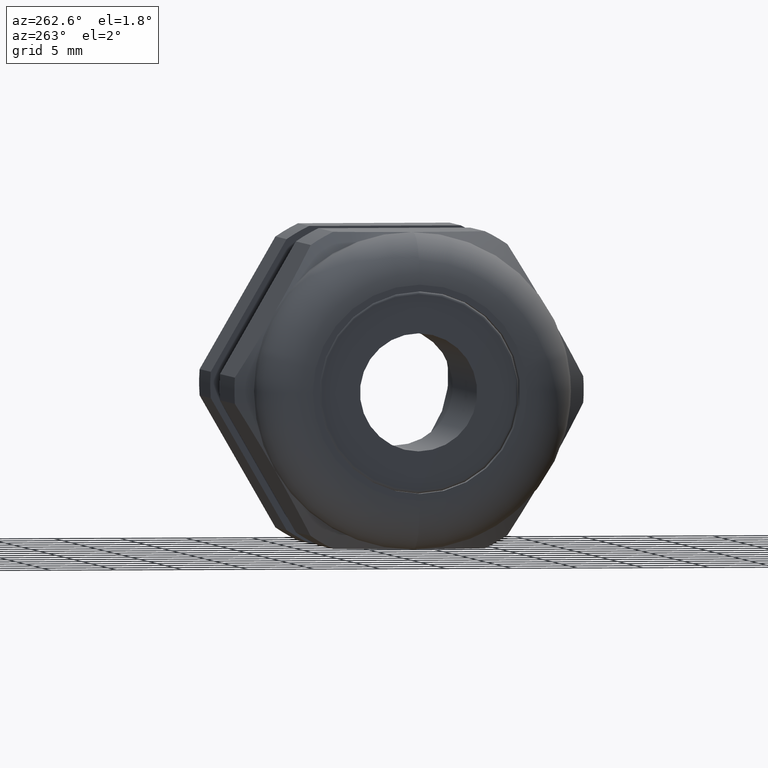
[diagram: clean part render]
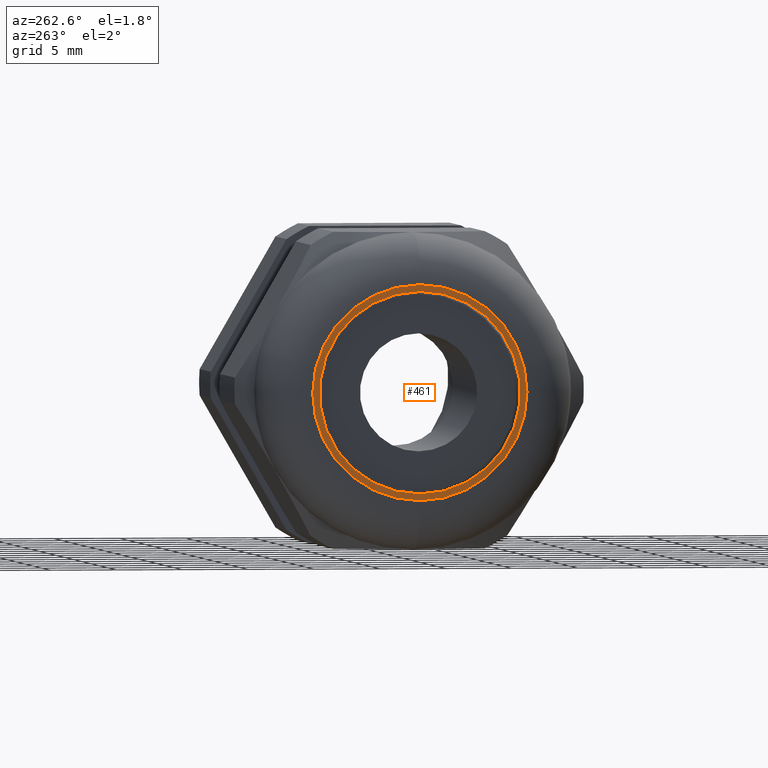
[diagram: same view with one face highlighted and labeled with its STEP entity id]
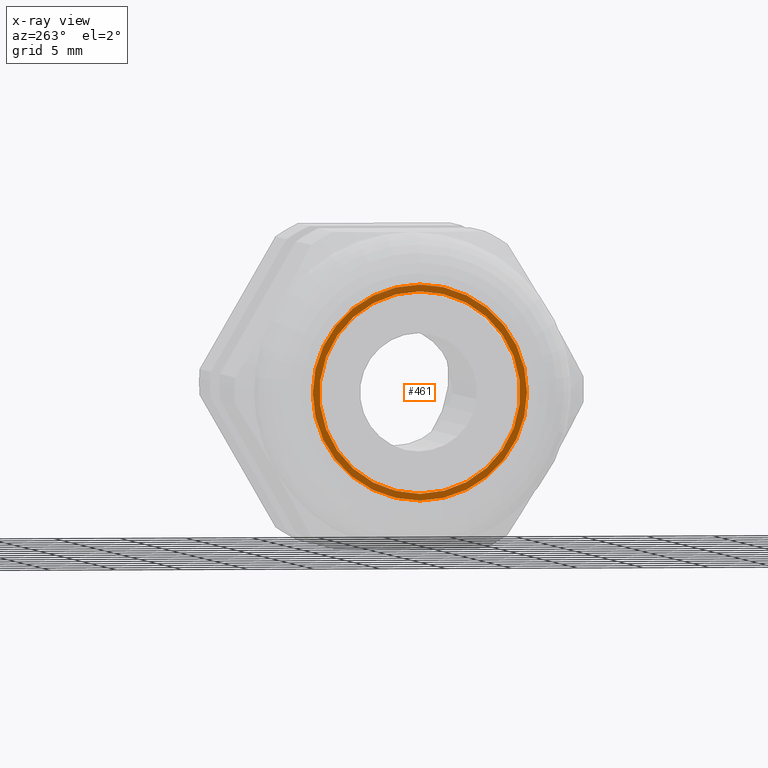
[diagram: x-ray of the same camera — body ghosted, the highlighted face saturated]
A machine part, auxiliary view. The second image highlights one B-rep face of the part: STEP entity #461.
The next image is the same camera in x-ray: the body ghosted, the highlighted face saturated — about 0% of this face is hidden behind the body in this view.
In plain terms, the highlighted planar face has unit normal (-1, 0, 0).
Its self-contained STEP definition (entity closure, byte-faithful):
#409 = EDGE_LOOP ( 'NONE', ( #462, #463 ) ) ;
#461 = ADVANCED_FACE ( 'NONE', ( #1886, #1885 ), #1948, .T. ) ;
#462 = ORIENTED_EDGE ( 'NONE', *, *, #2996, .T. ) ;
#463 = ORIENTED_EDGE ( 'NONE', *, *, #464, .T. ) ;
#464 = EDGE_CURVE ( 'NONE', #3004, #2998, #1943, .T. ) ;
#465 = EDGE_LOOP ( 'NONE', ( #466, #467 ) ) ;
#466 = ORIENTED_EDGE ( 'NONE', *, *, #483, .T. ) ;
#467 = ORIENTED_EDGE ( 'NONE', *, *, #3172, .T. ) ;
#483 = EDGE_CURVE ( 'NONE', #3169, #3171, #1981, .T. ) ;
#1885 = FACE_BOUND ( 'NONE', #465, .T. ) ;
#1886 = FACE_OUTER_BOUND ( 'NONE', #409, .T. ) ;
#1920 = CARTESIAN_POINT ( 'NONE',  ( -1.369999999999999900, 0.0000000000000000000, 0.0000000000000000000 ) ) ;
#1939 = DIRECTION ( 'NONE',  ( 0.0000000000000000000, 0.0000000000000000000, 1.000000000000000000 ) ) ;
#1940 = DIRECTION ( 'NONE',  ( -1.000000000000000000, 0.0000000000000000000, 0.0000000000000000000 ) ) ;
#1941 = CARTESIAN_POINT ( 'NONE',  ( -1.369999999999999900, 0.0000000000000000000, 0.0000000000000000000 ) ) ;
#1942 = AXIS2_PLACEMENT_3D ( 'NONE', #1941, #1940, #1939 ) ;
#1943 = CIRCLE ( 'NONE', #1942, 0.3199999999999999500 ) ;
#1944 = DIRECTION ( 'NONE',  ( 0.0000000000000000000, 0.0000000000000000000, 1.000000000000000000 ) ) ;
#1945 = DIRECTION ( 'NONE',  ( -1.000000000000000000, 0.0000000000000000000, 0.0000000000000000000 ) ) ;
#1946 = CARTESIAN_POINT ( 'NONE',  ( -1.369999999999999900, 0.4699999999999999700, 0.0000000000000000000 ) ) ;
#1947 = AXIS2_PLACEMENT_3D ( 'NONE', #1946, #1945, #1944 ) ;
#1948 = PLANE ( 'NONE',  #1947 ) ;
#1978 = DIRECTION ( 'NONE',  ( 0.0000000000000000000, 0.0000000000000000000, -1.000000000000000000 ) ) ;
#1979 = DIRECTION ( 'NONE',  ( 1.000000000000000000, 0.0000000000000000000, 0.0000000000000000000 ) ) ;
#1980 = AXIS2_PLACEMENT_3D ( 'NONE', #1920, #1979, #1978 ) ;
#1981 = CIRCLE ( 'NONE', #1980, 0.3000000000000001000 ) ;
#2996 = EDGE_CURVE ( 'NONE', #2998, #3004, #3440, .T. ) ;
#2998 = VERTEX_POINT ( 'NONE', #3429 ) ;
#3004 = VERTEX_POINT ( 'NONE', #3477 ) ;
#3169 = VERTEX_POINT ( 'NONE', #3794 ) ;
#3171 = VERTEX_POINT ( 'NONE', #3789 ) ;
#3172 = EDGE_CURVE ( 'NONE', #3171, #3169, #3788, .T. ) ;
#3429 = CARTESIAN_POINT ( 'NONE',  ( -1.369999999999999900, 0.0000000000000000000, 0.3199999999999999500 ) ) ;
#3436 = DIRECTION ( 'NONE',  ( 0.0000000000000000000, 0.0000000000000000000, 1.000000000000000000 ) ) ;
#3437 = DIRECTION ( 'NONE',  ( -1.000000000000000000, 0.0000000000000000000, 0.0000000000000000000 ) ) ;
#3438 = CARTESIAN_POINT ( 'NONE',  ( -1.369999999999999900, 0.0000000000000000000, 0.0000000000000000000 ) ) ;
#3439 = AXIS2_PLACEMENT_3D ( 'NONE', #3438, #3437, #3436 ) ;
#3440 = CIRCLE ( 'NONE', #3439, 0.3199999999999999500 ) ;
#3477 = CARTESIAN_POINT ( 'NONE',  ( -1.369999999999999900, 4.837354856632043700E-017, -0.3199999999999999500 ) ) ;
#3784 = DIRECTION ( 'NONE',  ( 0.0000000000000000000, 0.0000000000000000000, -1.000000000000000000 ) ) ;
#3785 = DIRECTION ( 'NONE',  ( 1.000000000000000000, 0.0000000000000000000, 0.0000000000000000000 ) ) ;
#3786 = CARTESIAN_POINT ( 'NONE',  ( -1.369999999999999900, 0.0000000000000000000, 0.0000000000000000000 ) ) ;
#3787 = AXIS2_PLACEMENT_3D ( 'NONE', #3786, #3785, #3784 ) ;
#3788 = CIRCLE ( 'NONE', #3787, 0.3000000000000001000 ) ;
#3789 = CARTESIAN_POINT ( 'NONE',  ( -1.369999999999999900, 3.673940397442061300E-017, 0.3000000000000001000 ) ) ;
#3794 = CARTESIAN_POINT ( 'NONE',  ( -1.369999999999999900, 0.0000000000000000000, -0.3000000000000001000 ) ) ;